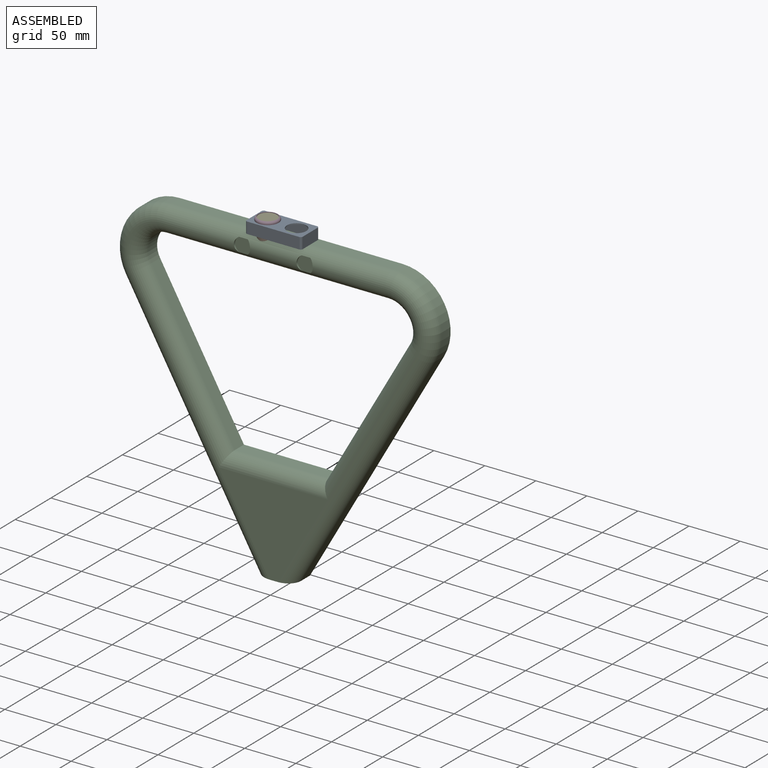
[diagram: assembled view]
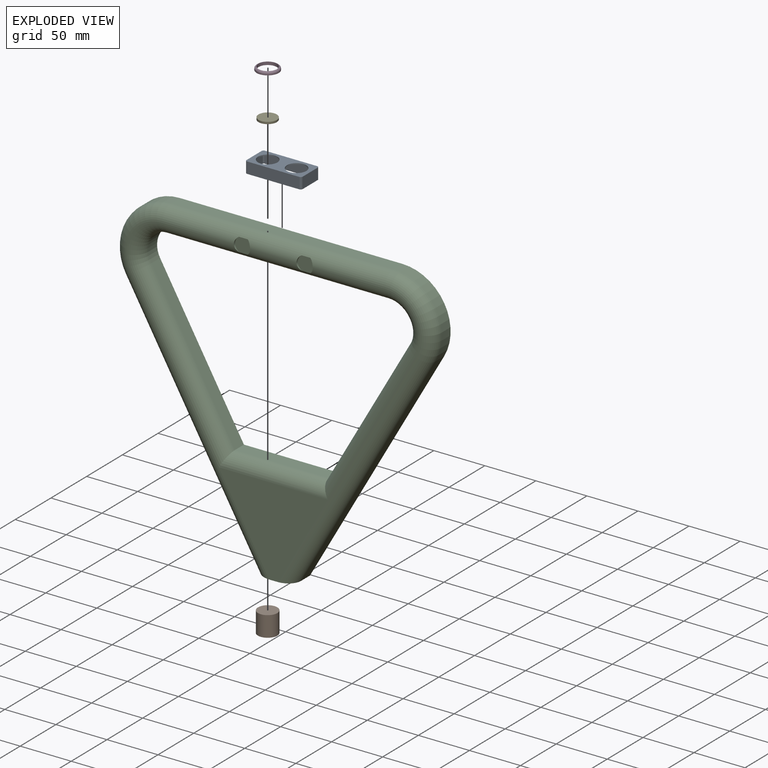
[diagram: exploded view]
GUIDED TOUR — MATED ASSEMBLY (Onshape document 2f1c9b23ea22a7873c695708, AutoMate assembly 2f1c9b23ea22a7873c695708_84e9df82b72b462aba61dbe0_7d6a7edc0ac84aae1da7de7c_default)

This assembly has 5 components, labeled P0..P4 below (a component is one placed occurrence of a part; the same part can appear more than once), held together by 4 mates. A mate is a constraint between two components; its type names the relative motion it leaves free:
  FASTENED — locks the two components together rigidly (no relative motion).
Axis/direction vectors are unit vectors and 'through' points are millimeter coordinates, both in the assembly's world frame.

MATES
  1. FASTENED "Fest 1": P1 <-> P0, direction (0.000, 0.000, 1.000) through (47.49, 78.46, -124.96) mm
  2. FASTENED "Fest 5": P0 <-> P2, direction (1.000, 0.000, 0.000) through (61.67, 90.96, -135.96) mm
  3. FASTENED "Fest 3": P4 <-> P1, direction (0.000, 0.000, -1.000) through (47.49, 78.46, -124.96) mm
  4. FASTENED "Fest 2": P3 <-> P4, direction (0.000, 0.000, 1.000) through (47.49, 78.46, -122.96) mm

ASSEMBLY ORDER
  1. P2 — the base component [order verified]
  2. P1 [order verified]
  3. P0 [order verified]
  4. P4 [order verified]
  5. P3 [order verified]
Order-tag legend:
  [order verified] — this step's position reverses a verified removal order: the component was checked to insert without passing through the ones already placed.

Of the 5 components, 1 carries the full construction recipe — the FeatureScript program that regenerates the part's solid from scratch; the rest are supplied as boundary geometry only.
Each toured component is shown spotlighted twice — in the assembled view, then in the exploded view, where a leader line traces a displaced component back to its assembled socket (saturated green if recipe-attached, orange if geometry-only; every other component desaturated gray) — followed by its recipe or geometry summary and the mates that hold it.
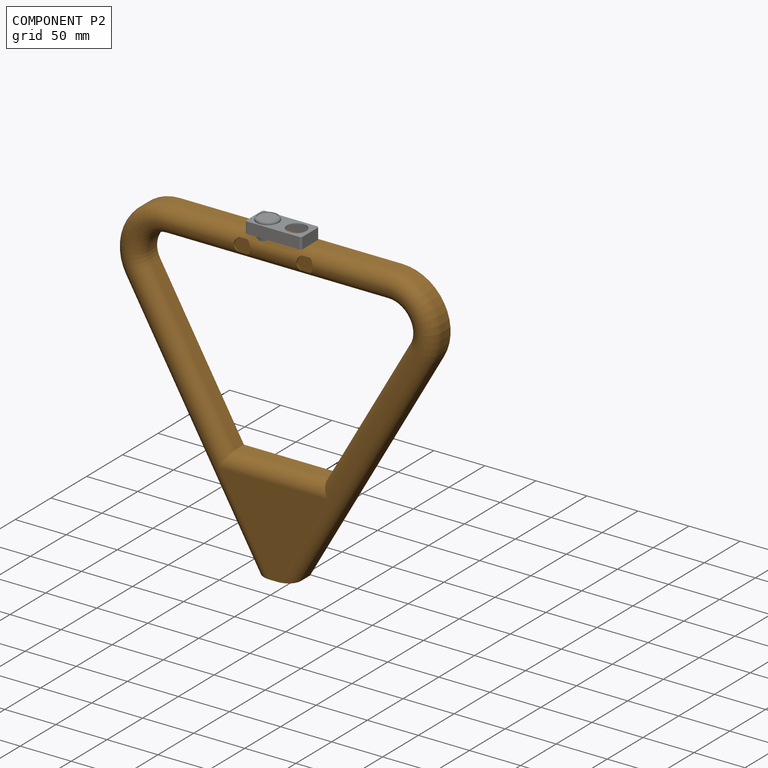
[diagram: component P2 — assembled]
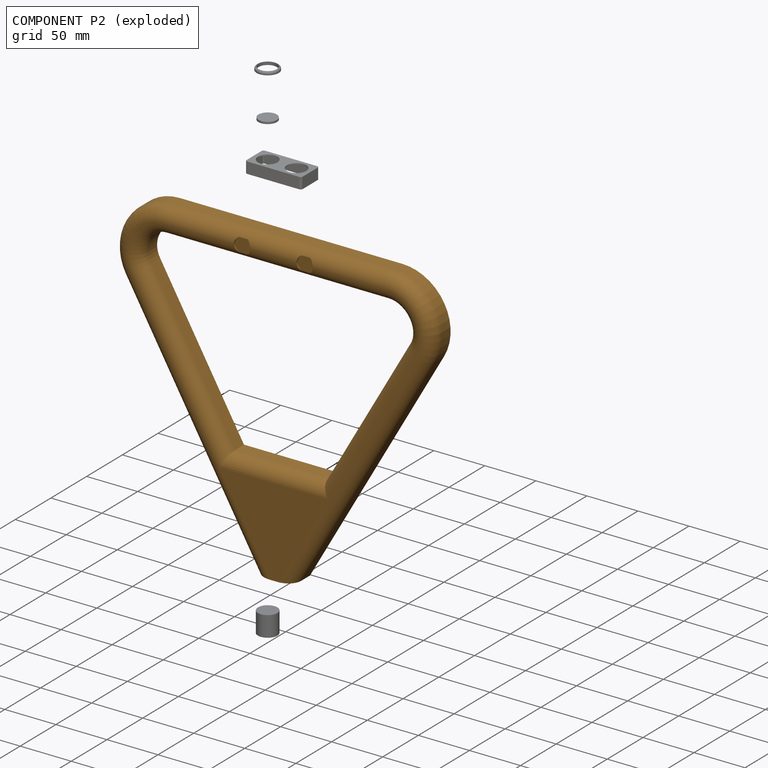
[diagram: component P2 — exploded]
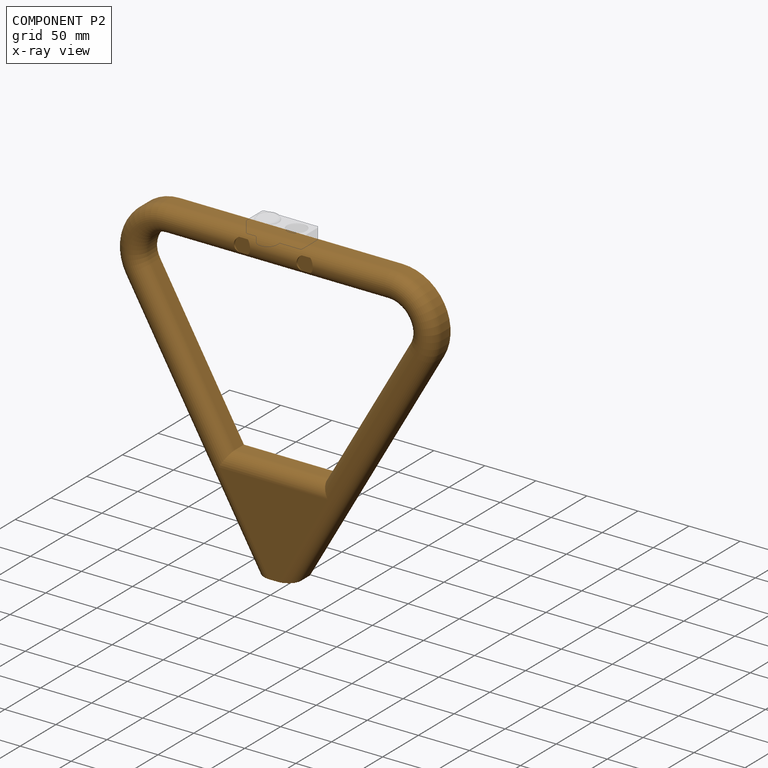
[diagram: component P2 — x-ray view]
COMPONENT P2 — geometry summary (no construction recipe available for this part):
  bounding box: 320.3 x 310.2 x 25.0 mm
  B-rep topology: 1 solid, 26 faces, 126 edges
  volume: 597811 mm^3 (24% of its bounding box)
  symmetry: mirror-symmetric across its x mid-plane
Held by: FASTENED mate "Fest 5" to P0.
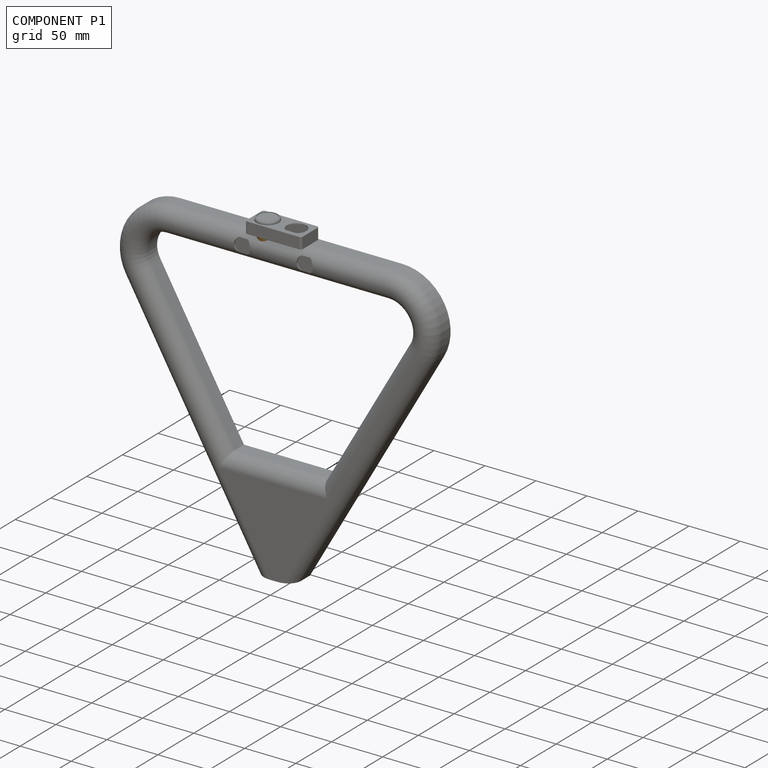
[diagram: component P1 — assembled]
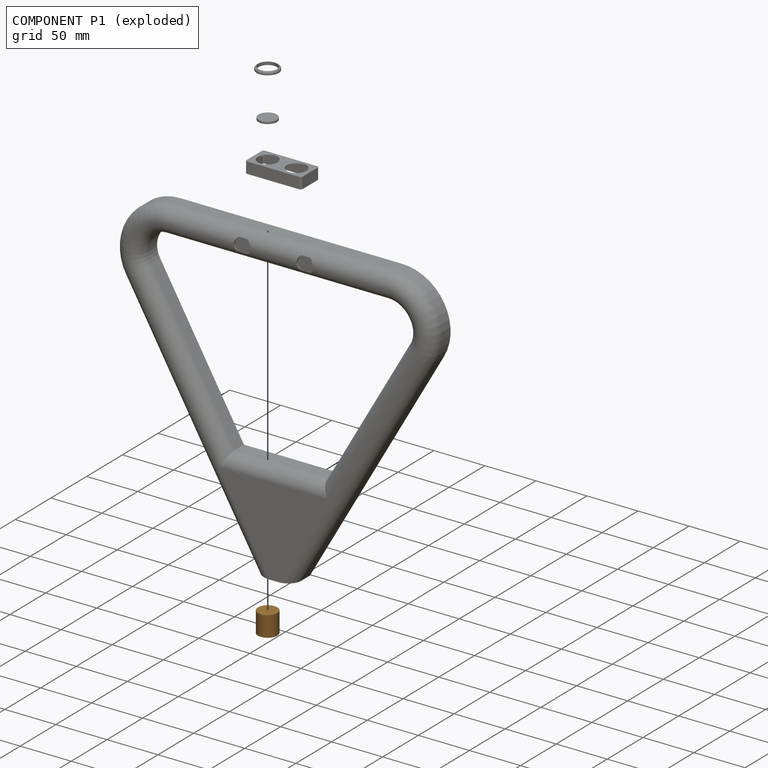
[diagram: component P1 — exploded]
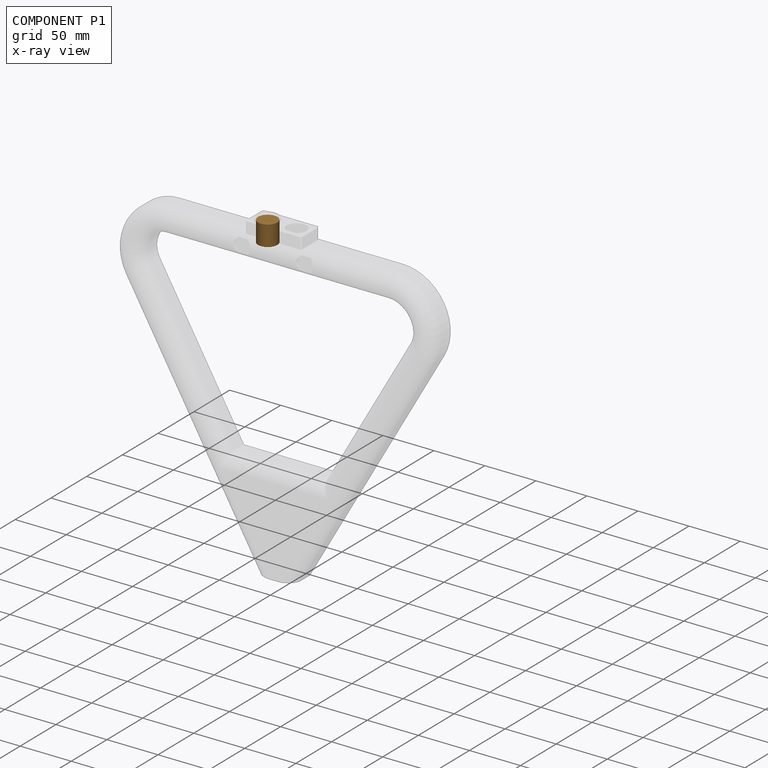
[diagram: component P1 — x-ray view]
COMPONENT P1 — geometry summary (no construction recipe available for this part):
  bounding box: 20.0 x 19.0 x 19.0 mm
  B-rep topology: 1 solid, 3 faces, 6 edges
  volume: 5671 mm^3 (79% of its bounding box)
  symmetry: 2-fold rotationally symmetric about the x axis; 2-fold rotationally symmetric about the y axis; revolution-symmetric about the z axis through its bounding-box center; mirror-symmetric across its x mid-plane, y mid-plane, z mid-plane
Held by: FASTENED mate "Fest 1" to P0; FASTENED mate "Fest 3" to P4.
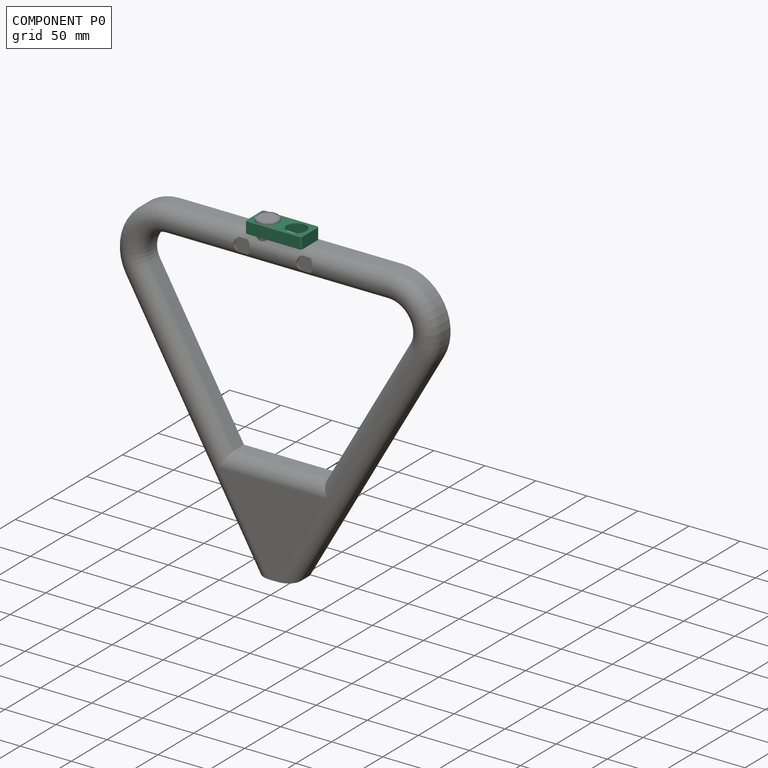
[diagram: component P0 — assembled]
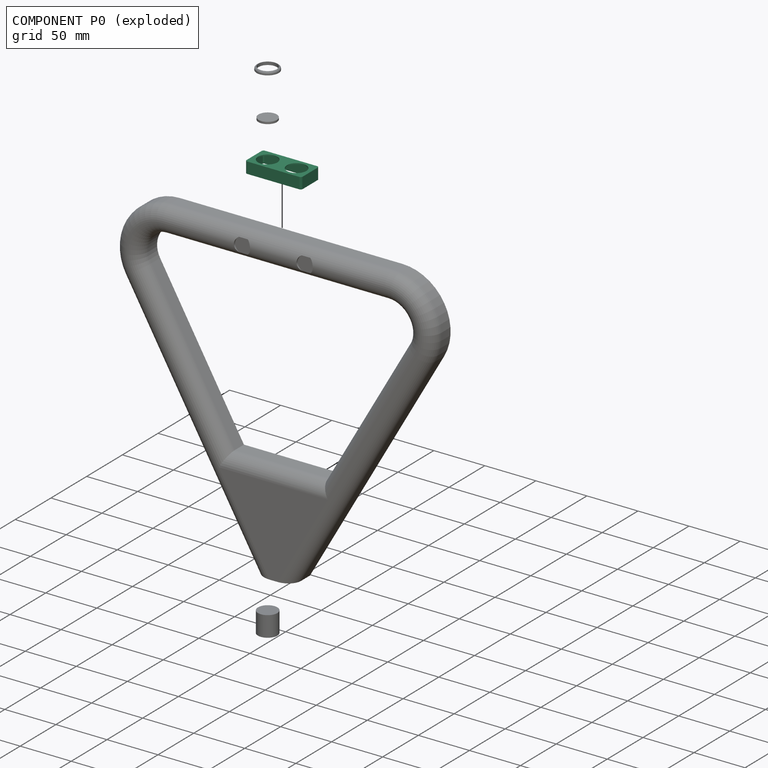
[diagram: component P0 — exploded]
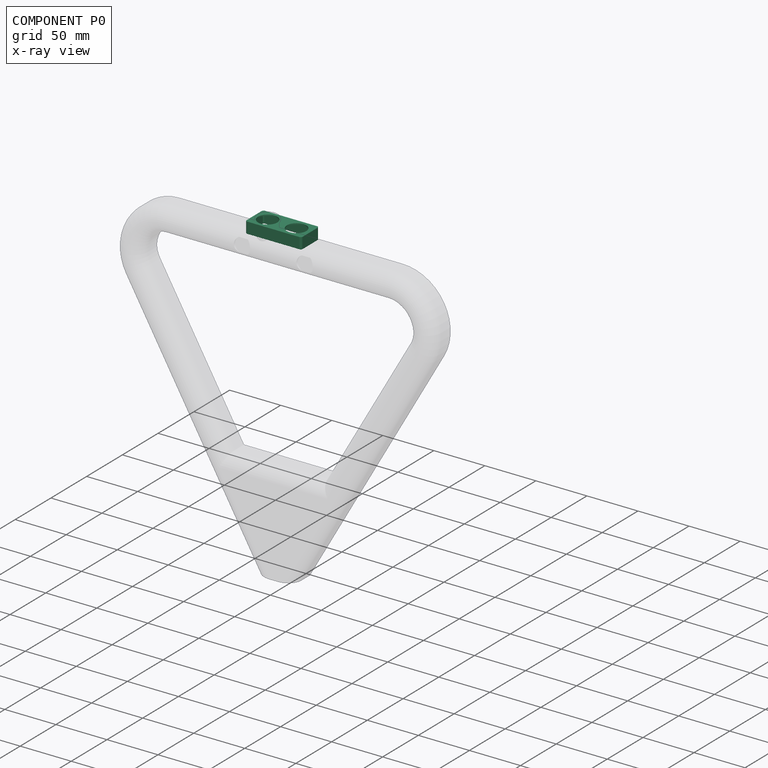
[diagram: component P0 — x-ray view]
COMPONENT P0 — recipe-attached (CADFS 00497645, mesh-verified: the recipe's output STEP matches this component's geometry to below the mesh-comparison resolution (tessellation chordal tolerance ~0.0921 mm)).
Held by: FASTENED mate "Fest 1" to P1; FASTENED mate "Fest 5" to P2.
Construction recipe (FeatureScript — the CAD program that rebuilds this solid; sketch coordinates are in the units given by the * unit suffixes, e.g. mm):

FeatureScript 1511;
import(path : "onshape/std/geometry.fs", version : "1511.0");
import(path : "onshape/std/common.fs", version : "1511.0");
const mm = millimeter;
const VERTEX = EntityType.VERTEX;
const EDGE = EntityType.EDGE;
const FACE = EntityType.FACE;
const BODY = EntityType.BODY;
function v(x, y){return vector(x, y);}
function OD(order){return orderDisambiguation(order);}
function OSD(set){return originalSetDisambiguation(set);}
function TD(topology){return topologyDisambiguation(topology);}
function TDD(query){return trueDependencyDisambiguation(query);}
function sQuery(a, b, c) {return sketchEntityQuery(a, b, c);}

annotation { "Feature Type Name" : "Feature", "Feature Type Description" : "" }
export const myFeature = defineFeature(function(context is Context, id is Id, definition is map)
    precondition{}
    {
        {
            var Q0;
            Q0=qCreatedBy(makeId("Front.planeOp"),FACE);
            var sketch = newSketch(context, id + "F0", { "sketchPlane" : qUnion([Q0])});
            skLineSegment(sketch, "E0.bottom", {"start": v(-25.5, 12.5) * mm, "end": v(25.5, 12.5) * mm});
            skLineSegment(sketch, "E0.top", {"start": v(-25.5, -12.5) * mm, "end": v(25.5, -12.5) * mm});
            skLineSegment(sketch, "E0.left", {"start": v(-27.5, 10.5) * mm, "end": v(-27.5, -10.5) * mm});
            skLineSegment(sketch, "E0.right", {"start": v(27.5, 10.5) * mm, "end": v(27.5, -10.5) * mm});
            skPoint(sketch, "E1.visualSharp", {"position": v(-27.5, 12.5) * mm});
            skArc(sketch, "E1.filletArc", {"start": v(-25.5, 12.5) * mm, "mid": v(-26.91, 11.91) * mm, "end": v(-27.5, 10.5) * mm});
            skPoint(sketch, "E2.visualSharp", {"position": v(27.5, 12.5) * mm});
            skArc(sketch, "E2.filletArc", {"start": v(27.5, 10.5) * mm, "mid": v(26.91, 11.91) * mm, "end": v(25.5, 12.5) * mm});
            skPoint(sketch, "E3.visualSharp", {"position": v(27.5, -12.5) * mm});
            skArc(sketch, "E3.filletArc", {"start": v(25.5, -12.5) * mm, "mid": v(26.91, -11.91) * mm, "end": v(27.5, -10.5) * mm});
            skPoint(sketch, "E4.visualSharp", {"position": v(-27.5, -12.5) * mm});
            skArc(sketch, "E4.filletArc", {"start": v(-27.5, -10.5) * mm, "mid": v(-26.91, -11.91) * mm, "end": v(-25.5, -12.5) * mm});
            skCircle(sketch, "E5", {"center": v(-14.18, 0) * mm, "radius": 9.5 * mm});
            skCircle(sketch, "E6", {"center": v(14.18, 0) * mm, "radius": 9.5 * mm});
            skSolve(sketch);
        }
        {
            var Q0;
            Q0=makeQuery(id+"F0.imprint","IMPRINT",FACE,{"disambiguationData":[TD([[makeQuery(id+"F0.imprint","IMPRINT",EDGE,{"derivedFrom":sQuery(id+"F0.wireOp",EDGE,"E0.bottom")}),-1.0]])]});
            extrude(context, id + "F1", {"entities" : qUnion([Q0]), "depth" : 1 * mm});
        }
        {
            var Q0;
            Q0=qCreatedBy(makeId("Front.planeOp"),FACE);
            var sketch = newSketch(context, id + "F2", { "sketchPlane" : qUnion([Q0])});
            skLineSegment(sketch, "E7.bottom", {"start": v(25.5, 11.5) * mm, "end": v(-25.5, 11.5) * mm});
            skLineSegment(sketch, "E7.top", {"start": v(25.5, -11.5) * mm, "end": v(-25.5, -11.5) * mm});
            skLineSegment(sketch, "E7.left", {"start": v(26.5, 10.5) * mm, "end": v(26.5, -10.5) * mm});
            skLineSegment(sketch, "E7.right", {"start": v(-26.5, 10.5) * mm, "end": v(-26.5, -10.5) * mm});
            skPoint(sketch, "E8.visualSharp", {"position": v(26.5, 11.5) * mm});
            skArc(sketch, "E8.filletArc", {"start": v(26.5, 10.5) * mm, "mid": v(26.2, 11.2) * mm, "end": v(25.5, 11.5) * mm});
            skPoint(sketch, "E9.visualSharp", {"position": v(-26.5, 11.5) * mm});
            skArc(sketch, "E9.filletArc", {"start": v(-25.5, 11.5) * mm, "mid": v(-26.2, 11.2) * mm, "end": v(-26.5, 10.5) * mm});
            skPoint(sketch, "E10.visualSharp", {"position": v(-26.5, -11.5) * mm});
            skArc(sketch, "E10.filletArc", {"start": v(-26.5, -10.5) * mm, "mid": v(-26.2, -11.2) * mm, "end": v(-25.5, -11.5) * mm});
            skPoint(sketch, "E11.visualSharp", {"position": v(26.5, -11.5) * mm});
            skArc(sketch, "E11.filletArc", {"start": v(25.5, -11.5) * mm, "mid": v(26.2, -11.2) * mm, "end": v(26.5, -10.5) * mm});
            skSolve(sketch);
        }
        {
            var Q0;
            Q0 = qSketchRegion(id + "F0", true);
            extrude(context, id + "F3", {"entities" : qUnion([Q0]), "operationType" : NewBodyOperationType.ADD, "oppositeDirection" : true, "depth" : 10 * mm});
        }
        {
            var Q0;
            Q0 = qSketchRegion(id + "F2", true);
            extrude(context, id + "F4", {"entities" : qUnion([Q0]), "operationType" : NewBodyOperationType.REMOVE, "oppositeDirection" : true, "depth" : 35.9 * mm});
        }
    });
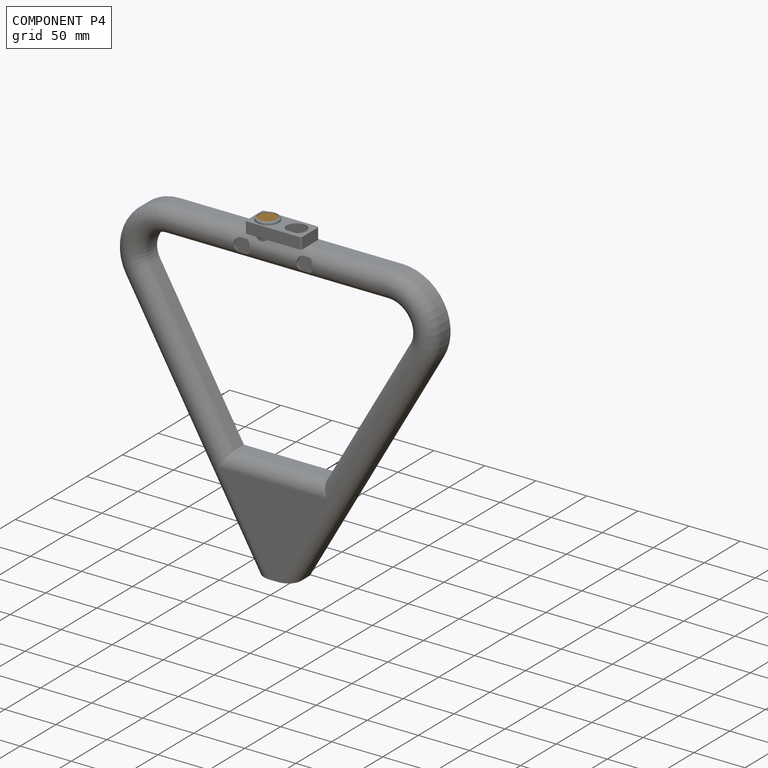
[diagram: component P4 — assembled]
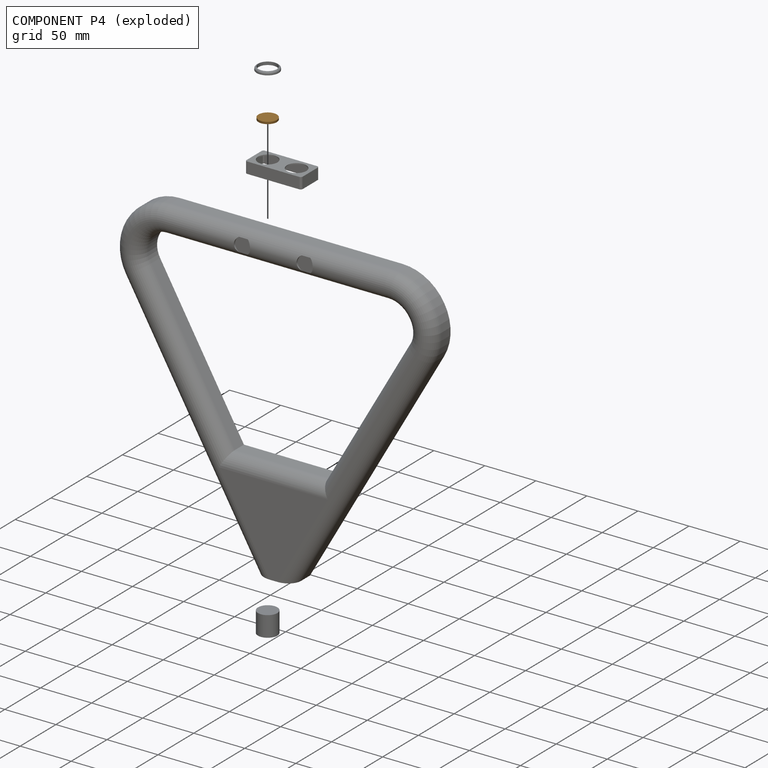
[diagram: component P4 — exploded]
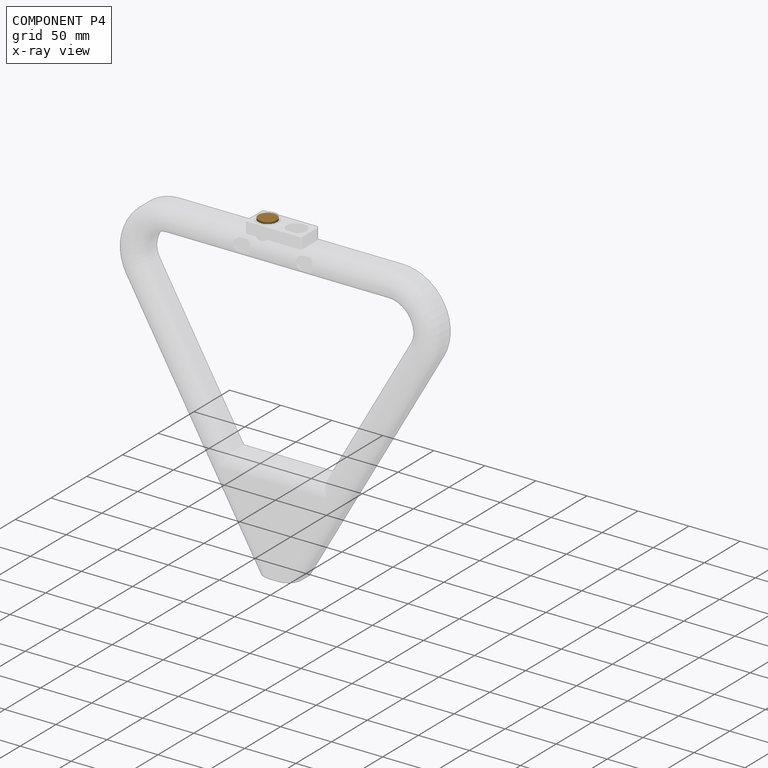
[diagram: component P4 — x-ray view]
COMPONENT P4 — geometry summary (no construction recipe available for this part):
  bounding box: 18.0 x 18.0 x 2.0 mm
  B-rep topology: 1 solid, 3 faces, 6 edges
  volume: 509 mm^3 (79% of its bounding box)
  symmetry: 2-fold rotationally symmetric about the x axis; 2-fold rotationally symmetric about the y axis; revolution-symmetric about the z axis through its bounding-box center; mirror-symmetric across its x mid-plane, y mid-plane, z mid-plane
Held by: FASTENED mate "Fest 3" to P1; FASTENED mate "Fest 2" to P3.
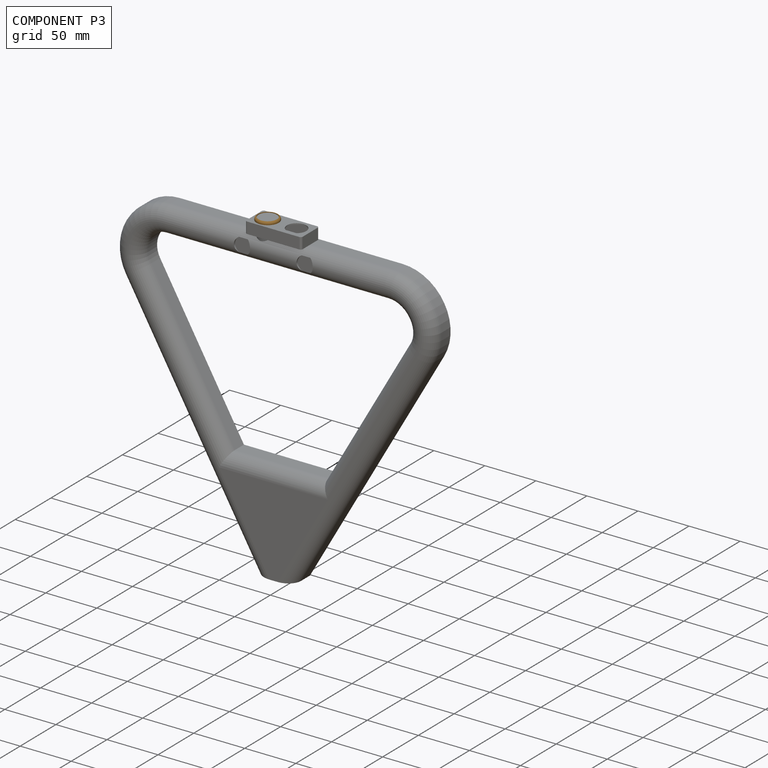
[diagram: component P3 — assembled]
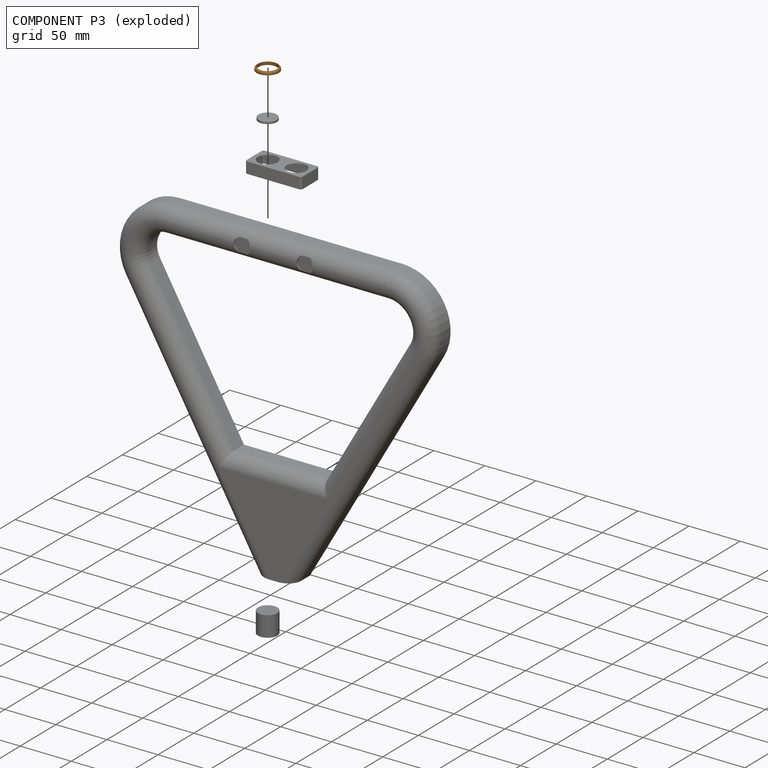
[diagram: component P3 — exploded]
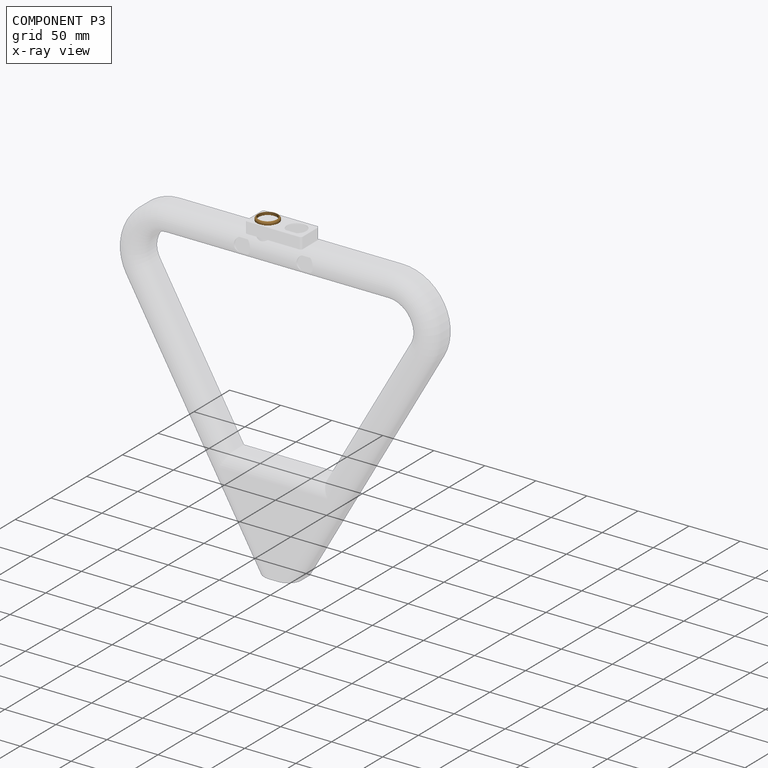
[diagram: component P3 — x-ray view]
COMPONENT P3 — geometry summary (no construction recipe available for this part):
  bounding box: 23.3 x 23.3 x 3.0 mm
  B-rep topology: 1 solid, 4 faces, 14 edges
  volume: 272 mm^3 (17% of its bounding box)
  symmetry: revolution-symmetric about the z axis through its bounding-box center; mirror-symmetric across its x mid-plane, y mid-plane
Held by: FASTENED mate "Fest 2" to P4.
PROVENANCE & LICENSES
Assembly (occurrences, transforms, mates, per-part STEP geometry): AutoMate dataset, Zenodo record 7776208, CC0.
Construction recipes: CADFS (HuggingFace VladPyatov/CADFS, CC-BY-4.0, layered over the ABC dataset), FeatureScript reconstruction programs keyed by ABC model id.
Join: ABC meta listings map ABC model id -> Onshape documentId; within a shared document, parts are matched by geometric signature (bounding-box dims + volume at 0.1% relative tolerance, exact B-rep face/solid counts).
Verification: 1 of this assembly's 5 components carries a recipe attachment, and every attachment is mesh-verified: the CADFS STEP and the AutoMate member STEP were compared as meshes in their shared local frame (symmetric sampled-point-to-mesh distance); worst across the 1 attachment: below the mesh-comparison resolution (tessellation chordal tolerance ~0.0921 mm) on a 61 mm part.
Renders: orthographic iso camera (az 35 / el 25); the floor grid conveys scale (grid pitch printed in each image; no ruler). In the exploded view each component is displaced by its stored offset vector: the offsets alone carry the explosion direction (mate normal/axis signs are not orientation cues and do not encode it), and separation distances are assigned per mate-chain, not proportionally to assembly-order depth.
